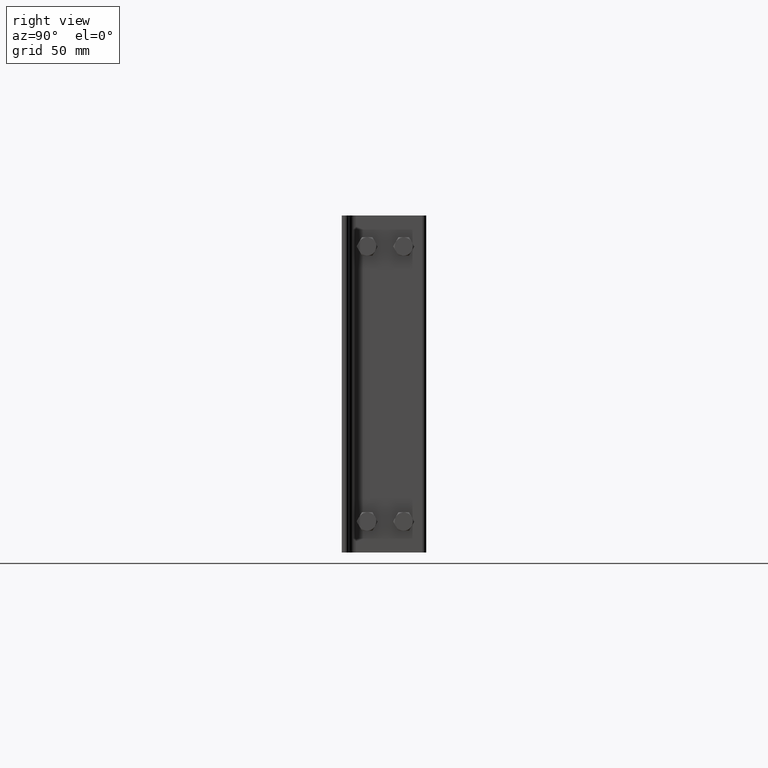
[diagram: clean part render]
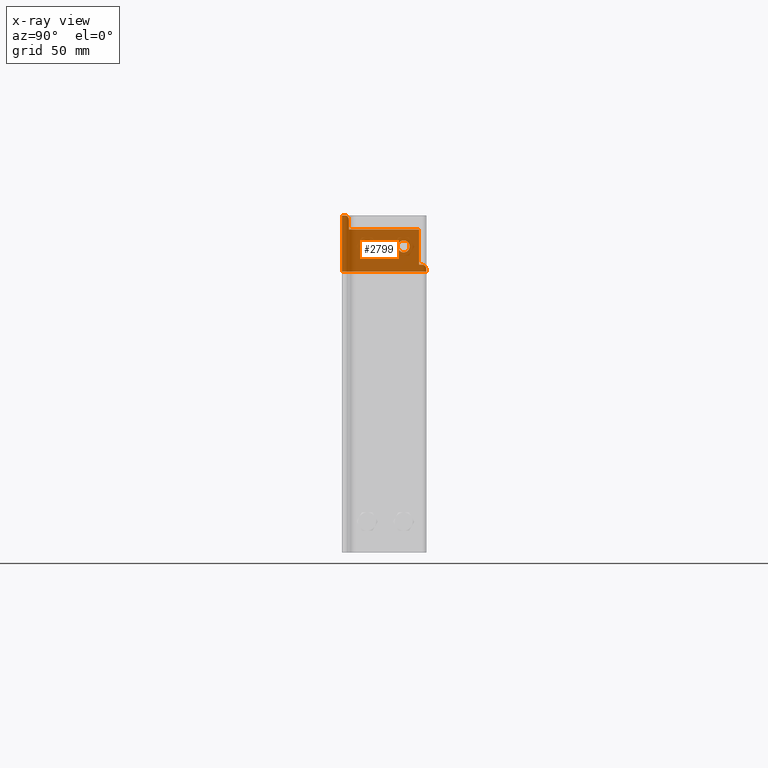
[diagram: x-ray — body ghosted, one internal face saturated and labeled with its STEP entity id]
A machine part, right view, then the same camera in x-ray: the body is ghosted and one INTERNAL B-rep face — a face not visible from any outside direction — is saturated and labeled: STEP entity #2799.
In plain terms, the highlighted planar face has unit normal (-1, 0, -0).
Its self-contained STEP definition (entity closure, byte-faithful):
#2212=CARTESIAN_POINT('',(22.249999999999986,44.0,120.5));
#2213=VERTEX_POINT('',#2212);
#2214=CARTESIAN_POINT('',(17.999999999999986,44.0,120.5));
#2215=DIRECTION('',(0.0,0.0,-1.0));
#2216=DIRECTION('',(-1.0,0.0,0.0));
#2217=AXIS2_PLACEMENT_3D('',#2214,#2215,#2216);
#2218=CIRCLE('',#2217,4.25);
#2219=EDGE_CURVE('',#2213,#2213,#2218,.T.);
#2268=CARTESIAN_POINT('',(22.249999999999996,18.0,120.5));
#2269=VERTEX_POINT('',#2268);
#2270=CARTESIAN_POINT('',(17.999999999999993,18.0,120.5));
#2271=DIRECTION('',(0.0,0.0,-1.0));
#2272=DIRECTION('',(-1.0,0.0,0.0));
#2273=AXIS2_PLACEMENT_3D('',#2270,#2271,#2272);
#2274=CIRCLE('',#2273,4.25);
#2275=EDGE_CURVE('',#2269,#2269,#2274,.T.);
#2452=CARTESIAN_POINT('',(30.0,4.999999999999998,120.5));
#2453=VERTEX_POINT('',#2452);
#2460=CARTESIAN_POINT('',(37.0,4.999999999999999,120.5));
#2461=VERTEX_POINT('',#2460);
#2462=CARTESIAN_POINT('',(30.0,4.999999999999998,120.5));
#2463=DIRECTION('',(1.0,0.0,0.0));
#2464=VECTOR('',#2463,7.0);
#2465=LINE('',#2462,#2464);
#2466=EDGE_CURVE('',#2453,#2461,#2465,.T.);
#2501=CARTESIAN_POINT('',(30.0,55.0,120.5));
#2502=VERTEX_POINT('',#2501);
#2509=CARTESIAN_POINT('',(30.0,5.0,120.5));
#2510=DIRECTION('',(0.0,1.0,0.0));
#2511=VECTOR('',#2510,50.0);
#2512=LINE('',#2509,#2511);
#2513=EDGE_CURVE('',#2453,#2502,#2512,.T.);
#2532=CARTESIAN_POINT('',(4.999999999999979,55.0,120.5));
#2533=VERTEX_POINT('',#2532);
#2540=CARTESIAN_POINT('',(30.0,55.0,120.5));
#2541=DIRECTION('',(-1.0,0.0,0.0));
#2542=VECTOR('',#2541,25.000000000000021);
#2543=LINE('',#2540,#2542);
#2544=EDGE_CURVE('',#2502,#2533,#2543,.T.);
#2596=CARTESIAN_POINT('',(4.999999999999979,57.0,120.5));
#2597=VERTEX_POINT('',#2596);
#2604=CARTESIAN_POINT('',(4.999999999999979,57.0,120.5));
#2605=DIRECTION('',(0.0,-1.0,0.0));
#2606=VECTOR('',#2605,2.0);
#2607=LINE('',#2604,#2606);
#2608=EDGE_CURVE('',#2597,#2533,#2607,.T.);
#2639=CARTESIAN_POINT('',(40.0,1.999999999999999,120.5));
#2640=VERTEX_POINT('',#2639);
#2641=CARTESIAN_POINT('',(37.0,1.999999999999999,120.5));
#2642=DIRECTION('',(0.0,0.0,-1.0));
#2643=DIRECTION('',(0.707106781186547,0.707106781186548,0.0));
#2644=AXIS2_PLACEMENT_3D('',#2641,#2642,#2643);
#2645=CIRCLE('',#2644,3.0);
#2646=EDGE_CURVE('',#2461,#2640,#2645,.T.);
#2730=CARTESIAN_POINT('',(1.999999999999973,60.0,120.5));
#2731=VERTEX_POINT('',#2730);
#2732=CARTESIAN_POINT('',(1.999999999999978,57.0,120.5));
#2733=DIRECTION('',(0.0,0.0,-1.0));
#2734=DIRECTION('',(0.707106781186548,0.707106781186547,0.0));
#2735=AXIS2_PLACEMENT_3D('',#2732,#2733,#2734);
#2736=CIRCLE('',#2735,3.0);
#2737=EDGE_CURVE('',#2731,#2597,#2736,.T.);
#2750=CARTESIAN_POINT('',(20.0,2.499999999999998,120.5));
#2751=DIRECTION('',(0.0,0.0,1.0));
#2752=DIRECTION('',(1.0,0.0,0.0));
#2753=AXIS2_PLACEMENT_3D('',#2750,#2751,#2752);
#2754=PLANE('',#2753);
#2755=ORIENTED_EDGE('',*,*,#2646,.F.);
#2756=ORIENTED_EDGE('',*,*,#2466,.F.);
#2757=ORIENTED_EDGE('',*,*,#2513,.T.);
#2758=ORIENTED_EDGE('',*,*,#2544,.T.);
#2759=ORIENTED_EDGE('',*,*,#2608,.F.);
#2760=ORIENTED_EDGE('',*,*,#2737,.F.);
#2761=CARTESIAN_POINT('',(-2.220446E-014,60.0,120.5));
#2762=VERTEX_POINT('',#2761);
#2763=CARTESIAN_POINT('',(-2.220446E-014,60.0,120.5));
#2764=DIRECTION('',(1.0,0.0,0.0));
#2765=VECTOR('',#2764,1.999999999999995);
#2766=LINE('',#2763,#2765);
#2767=EDGE_CURVE('',#2762,#2731,#2766,.T.);
#2768=ORIENTED_EDGE('',*,*,#2767,.F.);
#2769=CARTESIAN_POINT('',(0.0,0.0,120.5));
#2770=VERTEX_POINT('',#2769);
#2771=CARTESIAN_POINT('',(-3.155444E-030,0.0,120.5));
#2772=DIRECTION('',(0.0,1.0,0.0));
#2773=VECTOR('',#2772,60.0);
#2774=LINE('',#2771,#2773);
#2775=EDGE_CURVE('',#2770,#2762,#2774,.T.);
#2776=ORIENTED_EDGE('',*,*,#2775,.F.);
#2777=CARTESIAN_POINT('',(40.0,0.0,120.5));
#2778=VERTEX_POINT('',#2777);
#2779=CARTESIAN_POINT('',(40.0,0.0,120.5));
#2780=DIRECTION('',(-1.0,0.0,0.0));
#2781=VECTOR('',#2780,40.0);
#2782=LINE('',#2779,#2781);
#2783=EDGE_CURVE('',#2778,#2770,#2782,.T.);
#2784=ORIENTED_EDGE('',*,*,#2783,.F.);
#2785=CARTESIAN_POINT('',(40.0,1.999999999999999,120.5));
#2786=DIRECTION('',(0.0,-1.0,0.0));
#2787=VECTOR('',#2786,1.999999999999999);
#2788=LINE('',#2785,#2787);
#2789=EDGE_CURVE('',#2640,#2778,#2788,.T.);
#2790=ORIENTED_EDGE('',*,*,#2789,.F.);
#2791=EDGE_LOOP('',(#2755,#2756,#2757,#2758,#2759,#2760,#2768,#2776,#2784,#2790));
#2792=FACE_OUTER_BOUND('',#2791,.T.);
#2793=ORIENTED_EDGE('',*,*,#2219,.T.);
#2794=EDGE_LOOP('',(#2793));
#2795=FACE_BOUND('',#2794,.T.);
#2796=ORIENTED_EDGE('',*,*,#2275,.T.);
#2797=EDGE_LOOP('',(#2796));
#2798=FACE_BOUND('',#2797,.T.);
#2799=ADVANCED_FACE('',(#2792,#2795,#2798),#2754,.T.);